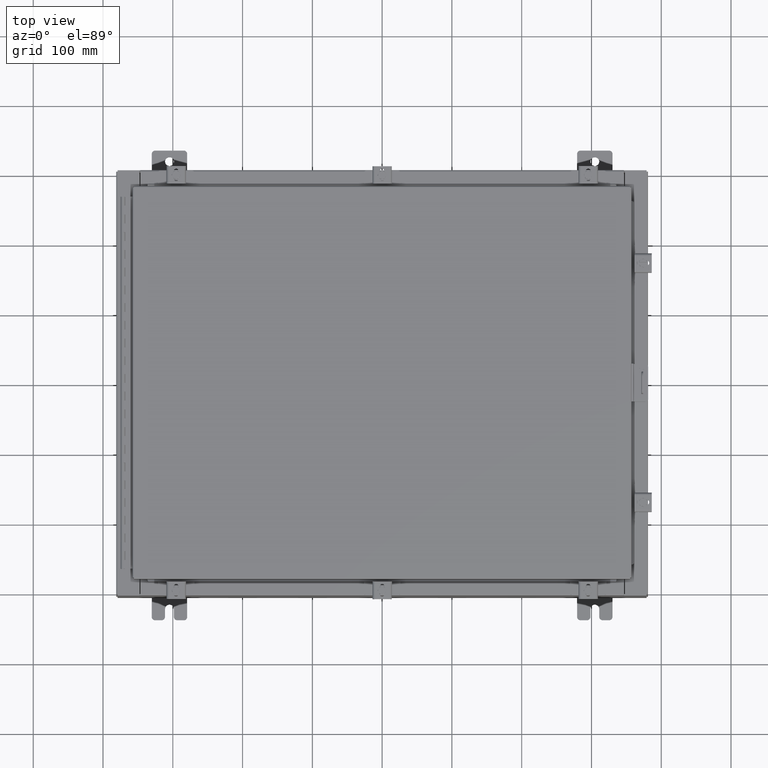
[diagram: clean part render]
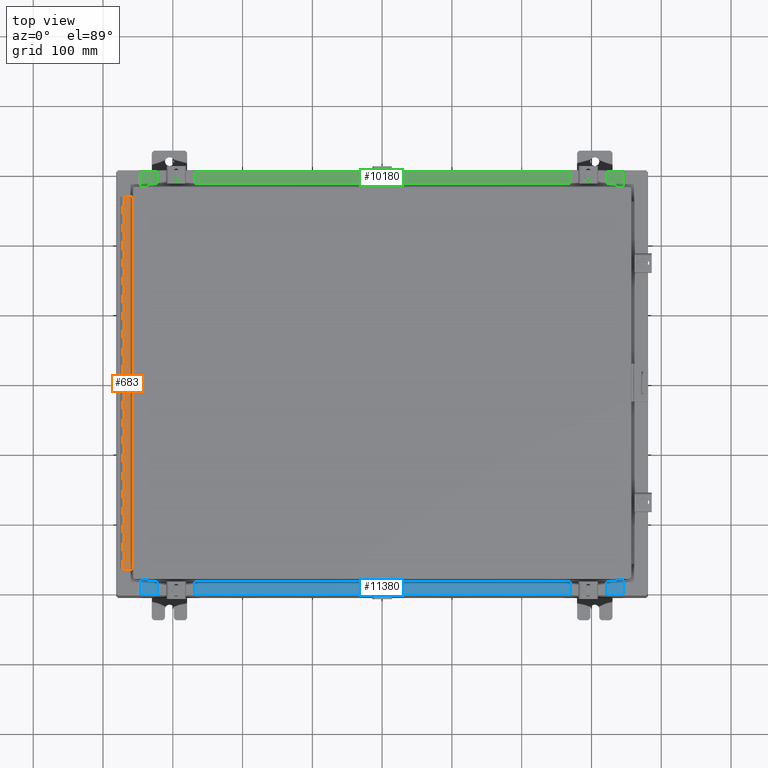
[diagram: same view with three faces highlighted in distinct colors, each labeled with its STEP entity id]
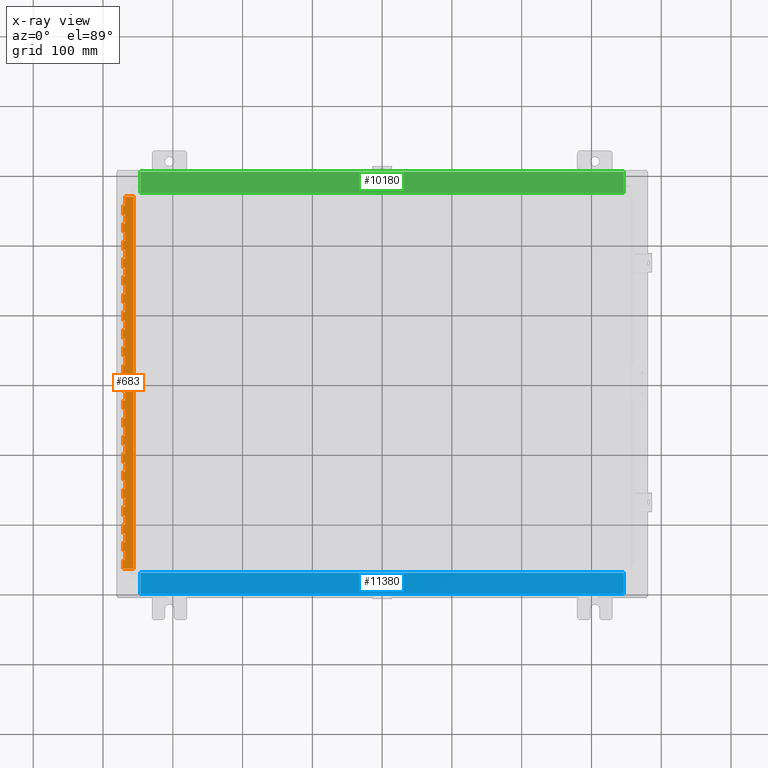
[diagram: x-ray of the same camera — body ghosted, the three highlighted faces saturated]
A machine part, top view with three faces highlighted in distinct colors.
The next image is the same camera in x-ray (body ghosted, the three faces saturated) — at least one of them is partly hidden behind the body in this view.
Their STEP definitions:

[orange] entity #683 — the highlighted planar face has unit normal (-0, -0, 1).
#65 = VECTOR ( 'NONE', #22758, 39.37007874015748100 ) ;
#122 = CARTESIAN_POINT ( 'NONE',  ( -0.6869999999999978300, 0.6754999999999996600, -3.500000000000000000 ) ) ;
#139 = VERTEX_POINT ( 'NONE', #6372 ) ;
#152 = CARTESIAN_POINT ( 'NONE',  ( -0.6869999999999982800, 0.5504999999999997700, -18.50000000000000000 ) ) ;
#167 = CARTESIAN_POINT ( 'NONE',  ( -0.6869999999999973900, 0.8004999999999995500, -6.499999999999999100 ) ) ;
#191 = CARTESIAN_POINT ( 'NONE',  ( -0.6869999999999973900, 0.8004999999999995500, -12.99999999999999800 ) ) ;
#266 = DIRECTION ( 'NONE',  ( -3.389037039080723100E-015, -1.000000000000000000, 0.0000000000000000000 ) ) ;
#292 = EDGE_CURVE ( 'NONE', #29341, #6983, #31892, .T. ) ;
#317 = ORIENTED_EDGE ( 'NONE', *, *, #31158, .F. ) ;
#353 = ORIENTED_EDGE ( 'NONE', *, *, #15928, .F. ) ;
#376 = EDGE_CURVE ( 'NONE', #9217, #16216, #23602, .T. ) ;
#424 = EDGE_CURVE ( 'NONE', #30192, #13076, #8690, .T. ) ;
#431 = VECTOR ( 'NONE', #21276, 39.37007874015748100 ) ;
#446 = CARTESIAN_POINT ( 'NONE',  ( -0.6869999999999973900, 0.8004999999999995500, -17.00000000000000000 ) ) ;
#537 = VERTEX_POINT ( 'NONE', #20522 ) ;
#582 = CARTESIAN_POINT ( 'NONE',  ( -0.6870000000000022800, -0.6245000000000003900, -21.00000000000000000 ) ) ;
#603 = DIRECTION ( 'NONE',  ( 0.0000000000000000000, -0.0000000000000000000, -1.000000000000000000 ) ) ;
#625 = EDGE_CURVE ( 'NONE', #3124, #15619, #5658, .T. ) ;
#628 = LINE ( 'NONE', #12460, #11592 ) ;
#683 = ADVANCED_FACE ( 'NONE', ( #3288 ), #2338, .T. ) ;
#734 = CARTESIAN_POINT ( 'NONE',  ( -0.6869999999999973900, 0.8004999999999995500, -13.50000000000000000 ) ) ;
#739 = VERTEX_POINT ( 'NONE', #7112 ) ;
#748 = VECTOR ( 'NONE', #29358, 39.37007874015748100 ) ;
#820 = DIRECTION ( 'NONE',  ( -3.389037039080723100E-015, -1.000000000000000000, 0.0000000000000000000 ) ) ;
#833 = CARTESIAN_POINT ( 'NONE',  ( -0.6869999999999982800, 0.5504999999999997700, -2.000000000000000000 ) ) ;
#855 = EDGE_CURVE ( 'NONE', #7072, #5792, #31166, .T. ) ;
#999 = LINE ( 'NONE', #26514, #6877 ) ;
#1034 = DIRECTION ( 'NONE',  ( 0.0000000000000000000, 0.0000000000000000000, 1.000000000000000000 ) ) ;
#1101 = CARTESIAN_POINT ( 'NONE',  ( -0.6869999999999982800, 0.5504999999999997700, -8.500000000000000000 ) ) ;
#1167 = CARTESIAN_POINT ( 'NONE',  ( -0.6869999999999982800, 0.5504999999999997700, -10.00000000000000000 ) ) ;
#1208 = CARTESIAN_POINT ( 'NONE',  ( -0.6869999999999973900, 0.8004999999999995500, -5.000000000000000000 ) ) ;
#1303 = EDGE_CURVE ( 'NONE', #4523, #19466, #27634, .T. ) ;
#1326 = LINE ( 'NONE', #20688, #27249 ) ;
#1329 = CARTESIAN_POINT ( 'NONE',  ( -0.6869999999999973900, 0.8004999999999995500, -2.000000000000000000 ) ) ;
#1330 = VERTEX_POINT ( 'NONE', #24858 ) ;
#1392 = CARTESIAN_POINT ( 'NONE',  ( -0.6869999999999978300, 0.6754999999999996600, -17.00000000000000000 ) ) ;
#1502 = CARTESIAN_POINT ( 'NONE',  ( -0.6869999999999982800, 0.5504999999999997700, -7.499999999999999100 ) ) ;
#1599 = CARTESIAN_POINT ( 'NONE',  ( -0.6869999999999982800, 0.5504999999999997700, -18.50000000000000000 ) ) ;
#1619 = ORIENTED_EDGE ( 'NONE', *, *, #26882, .T. ) ;
#1626 = ORIENTED_EDGE ( 'NONE', *, *, #17181, .F. ) ;
#1641 = VERTEX_POINT ( 'NONE', #22839 ) ;
#1664 = LINE ( 'NONE', #26599, #27608 ) ;
#1714 = ORIENTED_EDGE ( 'NONE', *, *, #10280, .F. ) ;
#1734 = VERTEX_POINT ( 'NONE', #10469 ) ;
#1803 = CARTESIAN_POINT ( 'NONE',  ( -0.6869999999999978300, 0.6754999999999996600, -1.499999999999999800 ) ) ;
#1877 = LINE ( 'NONE', #27218, #14440 ) ;
#1878 = VECTOR ( 'NONE', #16556, 39.37007874015748100 ) ;
#1914 = EDGE_CURVE ( 'NONE', #25918, #15418, #16550, .T. ) ;
#2035 = CARTESIAN_POINT ( 'NONE',  ( -0.6869999999999973900, 0.8004999999999995500, -14.99999999999999800 ) ) ;
#2129 = VECTOR ( 'NONE', #28273, 39.37007874015748100 ) ;
#2152 = EDGE_CURVE ( 'NONE', #5748, #29459, #16921, .T. ) ;
#2195 = VERTEX_POINT ( 'NONE', #19806 ) ;
#2206 = EDGE_CURVE ( 'NONE', #15619, #17277, #2847, .T. ) ;
#2229 = VERTEX_POINT ( 'NONE', #3881 ) ;
#2252 = LINE ( 'NONE', #9228, #14043 ) ;
#2295 = CARTESIAN_POINT ( 'NONE',  ( -0.6869999999999978300, 0.6754999999999996600, -6.000000000000000900 ) ) ;
#2335 = ORIENTED_EDGE ( 'NONE', *, *, #32374, .F. ) ;
#2338 = PLANE ( 'NONE',  #23793 ) ;
#2381 = DIRECTION ( 'NONE',  ( 1.000000000000000000, -3.369016658928398200E-015, 0.0000000000000000000 ) ) ;
#2389 = LINE ( 'NONE', #6958, #3174 ) ;
#2409 = DIRECTION ( 'NONE',  ( 3.369016658928398200E-015, 1.000000000000000000, 0.0000000000000000000 ) ) ;
#2653 = VERTEX_POINT ( 'NONE', #22105 ) ;
#2728 = EDGE_CURVE ( 'NONE', #16216, #24731, #22832, .T. ) ;
#2785 = ORIENTED_EDGE ( 'NONE', *, *, #11125, .F. ) ;
#2847 = LINE ( 'NONE', #2035, #22093 ) ;
#2911 = CARTESIAN_POINT ( 'NONE',  ( -0.6869999999999973900, 0.8004999999999995500, -8.500000000000000000 ) ) ;
#2962 = CARTESIAN_POINT ( 'NONE',  ( -0.6869999999999982800, 0.5504999999999997700, -19.00000000000000000 ) ) ;
#3007 = DIRECTION ( 'NONE',  ( 0.0000000000000000000, -0.0000000000000000000, -1.000000000000000000 ) ) ;
#3124 = VERTEX_POINT ( 'NONE', #8937 ) ;
#3163 = ORIENTED_EDGE ( 'NONE', *, *, #6586, .F. ) ;
#3174 = VECTOR ( 'NONE', #22000, 39.37007874015748100 ) ;
#3245 = CARTESIAN_POINT ( 'NONE',  ( -0.6869999999999978300, 0.6754999999999996600, -21.00000000000000000 ) ) ;
#3255 = DIRECTION ( 'NONE',  ( -3.389037039080723100E-015, -1.000000000000000000, 0.0000000000000000000 ) ) ;
#3288 = FACE_OUTER_BOUND ( 'NONE', #5073, .T. ) ;
#3552 = VECTOR ( 'NONE', #32476, 39.37007874015748100 ) ;
#3583 = DIRECTION ( 'NONE',  ( 0.0000000000000000000, 0.0000000000000000000, 1.000000000000000000 ) ) ;
#3595 = VECTOR ( 'NONE', #603, 39.37007874015748100 ) ;
#3627 = LINE ( 'NONE', #6124, #29570 ) ;
#3724 = ORIENTED_EDGE ( 'NONE', *, *, #4863, .F. ) ;
#3767 = EDGE_CURVE ( 'NONE', #22507, #30090, #32208, .T. ) ;
#3775 = EDGE_CURVE ( 'NONE', #30795, #25243, #12950, .T. ) ;
#3784 = LINE ( 'NONE', #4539, #8866 ) ;
#3813 = VECTOR ( 'NONE', #8443, 39.37007874015748100 ) ;
#3839 = VECTOR ( 'NONE', #26361, 39.37007874015748100 ) ;
#3858 = DIRECTION ( 'NONE',  ( 3.389037039080723100E-015, 1.000000000000000000, -0.0000000000000000000 ) ) ;
#3881 = CARTESIAN_POINT ( 'NONE',  ( -0.6869999999999982800, 0.5504999999999997700, -17.50000000000000000 ) ) ;
#3932 = CARTESIAN_POINT ( 'NONE',  ( -0.6869999999999982800, 0.5504999999999997700, -12.49999999999999800 ) ) ;
#3942 = DIRECTION ( 'NONE',  ( 0.0000000000000000000, -0.0000000000000000000, -1.000000000000000000 ) ) ;
#4041 = ORIENTED_EDGE ( 'NONE', *, *, #15552, .F. ) ;
#4101 = EDGE_CURVE ( 'NONE', #24534, #16961, #10958, .T. ) ;
#4102 = LINE ( 'NONE', #1329, #9975 ) ;
#4245 = LINE ( 'NONE', #17979, #15971 ) ;
#4295 = CARTESIAN_POINT ( 'NONE',  ( -0.6869999999999978300, 0.6754999999999996600, -17.50000000000000000 ) ) ;
#4325 = ORIENTED_EDGE ( 'NONE', *, *, #25165, .F. ) ;
#4348 = CARTESIAN_POINT ( 'NONE',  ( -0.6869999999999973900, 0.8004999999999995500, -14.00000000000000000 ) ) ;
#4349 = LINE ( 'NONE', #19738, #10222 ) ;
#4462 = VECTOR ( 'NONE', #8759, 39.37007874015748100 ) ;
#4470 = EDGE_CURVE ( 'NONE', #22019, #15418, #13316, .T. ) ;
#4523 = VERTEX_POINT ( 'NONE', #12181 ) ;
#4525 = LINE ( 'NONE', #9358, #17024 ) ;
#4539 = CARTESIAN_POINT ( 'NONE',  ( -0.6869999999999973900, 0.8004999999999995500, -19.00000000000000000 ) ) ;
#4594 = DIRECTION ( 'NONE',  ( 0.0000000000000000000, 0.0000000000000000000, 1.000000000000000000 ) ) ;
#4595 = LINE ( 'NONE', #31603, #30525 ) ;
#4621 = LINE ( 'NONE', #26251, #3839 ) ;
#4761 = CARTESIAN_POINT ( 'NONE',  ( -0.6869999999999978300, 0.6754999999999996600, -21.00000000000000000 ) ) ;
#4808 = LINE ( 'NONE', #19642, #17311 ) ;
#4863 = EDGE_CURVE ( 'NONE', #15400, #29447, #8959, .T. ) ;
#4923 = VECTOR ( 'NONE', #13907, 39.37007874015748100 ) ;
#5000 = CARTESIAN_POINT ( 'NONE',  ( -0.6869999999999982800, 0.5504999999999997700, -16.00000000000000000 ) ) ;
#5031 = VERTEX_POINT ( 'NONE', #19100 ) ;
#5034 = LINE ( 'NONE', #31393, #30948 ) ;
#5073 = EDGE_LOOP ( 'NONE', ( #24328, #1619, #14065, #6731, #20581, #2785, #5145, #10864, #20951, #317, #6466, #15825, #31653, #32199, #8653, #25817, #32251, #21759, #18553, #23607, #17889, #11761, #6420, #26084, #15412, #24532, #19178, #28316, #28579, #13387, #21346, #18062, #25481, #24981, #29862, #24490, #13104, #15791, #28848, #353, #14511, #3724, #32225, #21729, #27351, #17228, #6133, #18791, #15408, #1714, #15375, #10759, #8207, #2335, #28156, #28057, #9528, #26416, #18971, #7298, #5845, #5262, #16174, #1626, #8781, #25857, #3163, #23765, #9155, #4041, #29582, #6038, #8464, #9414, #27229, #12117, #25063, #30958, #27037, #4325, #18223, #15402, #17701, #5556, #32338, #18305 ) ) ;
#5141 = EDGE_CURVE ( 'NONE', #24578, #17277, #15980, .T. ) ;
#5145 = ORIENTED_EDGE ( 'NONE', *, *, #28186, .F. ) ;
#5236 = VERTEX_POINT ( 'NONE', #2295 ) ;
#5239 = VECTOR ( 'NONE', #15310, 39.37007874015748100 ) ;
#5243 = LINE ( 'NONE', #28883, #4462 ) ;
#5262 = ORIENTED_EDGE ( 'NONE', *, *, #24765, .F. ) ;
#5395 = CARTESIAN_POINT ( 'NONE',  ( -0.6869999999999978300, 0.6754999999999996600, -7.000000000000000000 ) ) ;
#5449 = CARTESIAN_POINT ( 'NONE',  ( -0.6869999999999978300, 0.6754999999999996600, -18.50000000000000000 ) ) ;
#5450 = VECTOR ( 'NONE', #16716, 39.37007874015748100 ) ;
#5454 = VERTEX_POINT ( 'NONE', #28538 ) ;
#5455 = CARTESIAN_POINT ( 'NONE',  ( -0.6869999999999982800, 0.5504999999999997700, -5.500000000000000000 ) ) ;
#5556 = ORIENTED_EDGE ( 'NONE', *, *, #8232, .F. ) ;
#5658 = LINE ( 'NONE', #10999, #30792 ) ;
#5664 = VECTOR ( 'NONE', #27011, 39.37007874015748100 ) ;
#5727 = LINE ( 'NONE', #3245, #31654 ) ;
#5748 = VERTEX_POINT ( 'NONE', #22490 ) ;
#5792 = VERTEX_POINT ( 'NONE', #18144 ) ;
#5845 = ORIENTED_EDGE ( 'NONE', *, *, #18565, .T. ) ;
#5863 = CARTESIAN_POINT ( 'NONE',  ( -0.6869999999999973900, 0.8004999999999995500, -6.000000000000000900 ) ) ;
#5878 = DIRECTION ( 'NONE',  ( -3.389037039080723100E-015, -1.000000000000000000, 0.0000000000000000000 ) ) ;
#5914 = LINE ( 'NONE', #11252, #7488 ) ;
#5923 = CARTESIAN_POINT ( 'NONE',  ( -0.6869999999999978300, 0.6754999999999996600, -8.000000000000000000 ) ) ;
#5980 = VECTOR ( 'NONE', #1034, 39.37007874015748100 ) ;
#6004 = VECTOR ( 'NONE', #12440, 39.37007874015748100 ) ;
#6038 = ORIENTED_EDGE ( 'NONE', *, *, #23477, .F. ) ;
#6124 = CARTESIAN_POINT ( 'NONE',  ( -0.6869999999999978300, 0.6754999999999996600, -21.00000000000000000 ) ) ;
#6133 = ORIENTED_EDGE ( 'NONE', *, *, #25951, .F. ) ;
#6168 = EDGE_CURVE ( 'NONE', #7909, #15400, #26163, .T. ) ;
#6192 = CARTESIAN_POINT ( 'NONE',  ( -0.6870000000000022800, -0.6245000000000003900, 0.0000000000000000000 ) ) ;
#6215 = VERTEX_POINT ( 'NONE', #24286 ) ;
#6302 = EDGE_CURVE ( 'NONE', #739, #22326, #28933, .T. ) ;
#6372 = CARTESIAN_POINT ( 'NONE',  ( -0.6869999999999978300, 0.6754999999999996600, -16.50000000000000000 ) ) ;
#6404 = DIRECTION ( 'NONE',  ( 0.0000000000000000000, 0.0000000000000000000, 1.000000000000000000 ) ) ;
#6407 = DIRECTION ( 'NONE',  ( -3.389037039080723100E-015, -1.000000000000000000, 0.0000000000000000000 ) ) ;
#6420 = ORIENTED_EDGE ( 'NONE', *, *, #10039, .F. ) ;
#6466 = ORIENTED_EDGE ( 'NONE', *, *, #22537, .F. ) ;
#6498 = DIRECTION ( 'NONE',  ( 0.0000000000000000000, 0.0000000000000000000, 1.000000000000000000 ) ) ;
#6563 = VERTEX_POINT ( 'NONE', #13572 ) ;
#6586 = EDGE_CURVE ( 'NONE', #28908, #29935, #26937, .T. ) ;
#6669 = LINE ( 'NONE', #10553, #2129 ) ;
#6731 = ORIENTED_EDGE ( 'NONE', *, *, #10846, .F. ) ;
#6739 = LINE ( 'NONE', #167, #65 ) ;
#6779 = CARTESIAN_POINT ( 'NONE',  ( -0.6869999999999982800, 0.5504999999999997700, -21.00000000000000000 ) ) ;
#6818 = DIRECTION ( 'NONE',  ( 3.389037039080723100E-015, 1.000000000000000000, -0.0000000000000000000 ) ) ;
#6870 = DIRECTION ( 'NONE',  ( 3.389037039080723100E-015, 1.000000000000000000, -0.0000000000000000000 ) ) ;
#6877 = VECTOR ( 'NONE', #29055, 39.37007874015748100 ) ;
#6958 = CARTESIAN_POINT ( 'NONE',  ( -0.6869999999999973900, 0.8004999999999995500, -17.50000000000000000 ) ) ;
#6983 = VERTEX_POINT ( 'NONE', #1392 ) ;
#7036 = EDGE_CURVE ( 'NONE', #30334, #29341, #10006, .T. ) ;
#7072 = VERTEX_POINT ( 'NONE', #12558 ) ;
#7098 = LINE ( 'NONE', #1101, #431 ) ;
#7112 = CARTESIAN_POINT ( 'NONE',  ( -0.6869999999999982800, 0.5504999999999997700, -1.499999999999999800 ) ) ;
#7127 = DIRECTION ( 'NONE',  ( 0.0000000000000000000, 0.0000000000000000000, 1.000000000000000000 ) ) ;
#7171 = DIRECTION ( 'NONE',  ( 0.0000000000000000000, 0.0000000000000000000, 1.000000000000000000 ) ) ;
#7222 = CARTESIAN_POINT ( 'NONE',  ( -0.6869999999999982800, 0.5504999999999997700, -11.50000000000000000 ) ) ;
#7269 = LINE ( 'NONE', #23947, #20612 ) ;
#7288 = CARTESIAN_POINT ( 'NONE',  ( -0.6869999999999978300, 0.6754999999999996600, -16.00000000000000000 ) ) ;
#7298 = ORIENTED_EDGE ( 'NONE', *, *, #24563, .F. ) ;
#7343 = CARTESIAN_POINT ( 'NONE',  ( -0.6869999999999982800, 0.5504999999999997700, -17.50000000000000000 ) ) ;
#7488 = VECTOR ( 'NONE', #3583, 39.37007874015748100 ) ;
#7577 = LINE ( 'NONE', #22426, #6004 ) ;
#7734 = CARTESIAN_POINT ( 'NONE',  ( -0.6869999999999978300, 0.6754999999999996600, -15.50000000000000000 ) ) ;
#7790 = CARTESIAN_POINT ( 'NONE',  ( -0.6869999999999978300, 0.6754999999999996600, -14.00000000000000000 ) ) ;
#7824 = LINE ( 'NONE', #12228, #21165 ) ;
#7900 = LINE ( 'NONE', #1208, #27150 ) ;
#7906 = LINE ( 'NONE', #5863, #24387 ) ;
#7909 = VERTEX_POINT ( 'NONE', #17813 ) ;
#7913 = VECTOR ( 'NONE', #18551, 39.37007874015748100 ) ;
#8139 = EDGE_CURVE ( 'NONE', #139, #16961, #5034, .T. ) ;
#8207 = ORIENTED_EDGE ( 'NONE', *, *, #424, .T. ) ;
#8231 = CARTESIAN_POINT ( 'NONE',  ( -0.6869999999999973900, 0.8004999999999995500, -11.50000000000000000 ) ) ;
#8232 = EDGE_CURVE ( 'NONE', #1330, #16284, #1877, .T. ) ;
#8268 = VERTEX_POINT ( 'NONE', #25272 ) ;
#8270 = CARTESIAN_POINT ( 'NONE',  ( -0.6869999999999978300, 0.6754999999999996600, -17.99999999999999600 ) ) ;
#8289 = CARTESIAN_POINT ( 'NONE',  ( -0.6869999999999973900, 0.8004999999999995500, -15.50000000000000000 ) ) ;
#8293 = LINE ( 'NONE', #11638, #20840 ) ;
#8443 = DIRECTION ( 'NONE',  ( 0.0000000000000000000, 0.0000000000000000000, 1.000000000000000000 ) ) ;
#8464 = ORIENTED_EDGE ( 'NONE', *, *, #15964, .T. ) ;
#8653 = ORIENTED_EDGE ( 'NONE', *, *, #19830, .F. ) ;
#8690 = LINE ( 'NONE', #19706, #7913 ) ;
#8759 = DIRECTION ( 'NONE',  ( -3.389037039080723100E-015, -1.000000000000000000, 0.0000000000000000000 ) ) ;
#8770 = LINE ( 'NONE', #30902, #14649 ) ;
#8781 = ORIENTED_EDGE ( 'NONE', *, *, #12454, .T. ) ;
#8792 = EDGE_CURVE ( 'NONE', #27596, #6983, #4595, .T. ) ;
#8866 = VECTOR ( 'NONE', #17094, 39.37007874015748100 ) ;
#8872 = VERTEX_POINT ( 'NONE', #23119 ) ;
#8873 = CARTESIAN_POINT ( 'NONE',  ( -0.6869999999999982800, 0.5504999999999997700, -15.50000000000000000 ) ) ;
#8937 = CARTESIAN_POINT ( 'NONE',  ( -0.6869999999999982800, 0.5504999999999997700, -14.49999999999999800 ) ) ;
#8959 = LINE ( 'NONE', #18630, #21535 ) ;
#8999 = VECTOR ( 'NONE', #23101, 39.37007874015748100 ) ;
#9155 = ORIENTED_EDGE ( 'NONE', *, *, #11512, .T. ) ;
#9217 = VERTEX_POINT ( 'NONE', #3932 ) ;
#9228 = CARTESIAN_POINT ( 'NONE',  ( -0.6869999999999978300, 0.6754999999999996600, -21.00000000000000000 ) ) ;
#9352 = EDGE_CURVE ( 'NONE', #18703, #11835, #29728, .T. ) ;
#9358 = CARTESIAN_POINT ( 'NONE',  ( -0.6869999999999973900, 0.8004999999999995500, -14.49999999999999800 ) ) ;
#9414 = ORIENTED_EDGE ( 'NONE', *, *, #32229, .F. ) ;
#9515 = EDGE_CURVE ( 'NONE', #15186, #11835, #628, .T. ) ;
#9528 = ORIENTED_EDGE ( 'NONE', *, *, #17973, .T. ) ;
#9587 = VECTOR ( 'NONE', #12750, 39.37007874015748100 ) ;
#9628 = CARTESIAN_POINT ( 'NONE',  ( -0.6869999999999978300, 0.6754999999999996600, -5.500000000000000000 ) ) ;
#9666 = EDGE_CURVE ( 'NONE', #30192, #31620, #14348, .T. ) ;
#9726 = CARTESIAN_POINT ( 'NONE',  ( -0.6869999999999982800, 0.5504999999999997700, -0.5000000000000000000 ) ) ;
#9746 = EDGE_CURVE ( 'NONE', #24578, #16069, #18626, .T. ) ;
#9779 = LINE ( 'NONE', #30705, #8999 ) ;
#9873 = EDGE_CURVE ( 'NONE', #25243, #2653, #28902, .T. ) ;
#9877 = DIRECTION ( 'NONE',  ( 0.0000000000000000000, -0.0000000000000000000, -1.000000000000000000 ) ) ;
#9901 = EDGE_CURVE ( 'NONE', #19716, #9217, #7269, .T. ) ;
#9941 = EDGE_CURVE ( 'NONE', #139, #30334, #25721, .T. ) ;
#9949 = LINE ( 'NONE', #31066, #17361 ) ;
#9975 = VECTOR ( 'NONE', #3858, 39.37007874015748100 ) ;
#10006 = LINE ( 'NONE', #21034, #30074 ) ;
#10039 = EDGE_CURVE ( 'NONE', #16069, #24534, #24144, .T. ) ;
#10222 = VECTOR ( 'NONE', #17192, 39.37007874015748100 ) ;
#10280 = EDGE_CURVE ( 'NONE', #17169, #15757, #16221, .T. ) ;
#10293 = VECTOR ( 'NONE', #6818, 39.37007874015748100 ) ;
#10431 = VECTOR ( 'NONE', #6870, 39.37007874015748100 ) ;
#10451 = VERTEX_POINT ( 'NONE', #25803 ) ;
#10469 = CARTESIAN_POINT ( 'NONE',  ( -0.6869999999999978300, 0.6754999999999996600, -6.499999999999999100 ) ) ;
#10537 = CARTESIAN_POINT ( 'NONE',  ( -0.6869999999999982800, 0.5504999999999997700, -9.000000000000000000 ) ) ;
#10551 = EDGE_CURVE ( 'NONE', #22326, #22857, #4102, .T. ) ;
#10553 = CARTESIAN_POINT ( 'NONE',  ( -0.6869999999999973900, 0.8004999999999995500, -4.500000000000000000 ) ) ;
#10641 = DIRECTION ( 'NONE',  ( -3.389037039080723100E-015, -1.000000000000000000, 0.0000000000000000000 ) ) ;
#10644 = VECTOR ( 'NONE', #9877, 39.37007874015748100 ) ;
#10759 = ORIENTED_EDGE ( 'NONE', *, *, #9666, .F. ) ;
#10800 = DIRECTION ( 'NONE',  ( 0.0000000000000000000, 0.0000000000000000000, 1.000000000000000000 ) ) ;
#10842 = EDGE_CURVE ( 'NONE', #18853, #7909, #8770, .T. ) ;
#10844 = VERTEX_POINT ( 'NONE', #15829 ) ;
#10846 = EDGE_CURVE ( 'NONE', #26483, #20665, #1326, .T. ) ;
#10864 = ORIENTED_EDGE ( 'NONE', *, *, #855, .F. ) ;
#10958 = LINE ( 'NONE', #28687, #16032 ) ;
#10968 = DIRECTION ( 'NONE',  ( 0.0000000000000000000, 0.0000000000000000000, 1.000000000000000000 ) ) ;
#10969 = CARTESIAN_POINT ( 'NONE',  ( -0.6869999999999978300, 0.6754999999999996600, -14.99999999999999800 ) ) ;
#10985 = CARTESIAN_POINT ( 'NONE',  ( -0.6869999999999978300, 0.6754999999999996600, -21.00000000000000000 ) ) ;
#10999 = CARTESIAN_POINT ( 'NONE',  ( -0.6869999999999982800, 0.5504999999999997700, -14.49999999999999800 ) ) ;
#11057 = CARTESIAN_POINT ( 'NONE',  ( -0.6869999999999978300, 0.6754999999999996600, -11.99999999999999800 ) ) ;
#11115 = LINE ( 'NONE', #14526, #23675 ) ;
#11125 = EDGE_CURVE ( 'NONE', #5031, #10451, #7577, .T. ) ;
#11252 = CARTESIAN_POINT ( 'NONE',  ( -0.6869999999999978300, 0.6754999999999996600, -21.00000000000000000 ) ) ;
#11349 = CARTESIAN_POINT ( 'NONE',  ( -0.6869999999999978300, 0.6754999999999996600, -21.00000000000000000 ) ) ;
#11365 = LINE ( 'NONE', #734, #24711 ) ;
#11512 = EDGE_CURVE ( 'NONE', #19441, #31669, #1664, .T. ) ;
#11561 = VECTOR ( 'NONE', #26818, 39.37007874015748100 ) ;
#11579 = LINE ( 'NONE', #28955, #4923 ) ;
#11591 = DIRECTION ( 'NONE',  ( 0.0000000000000000000, 0.0000000000000000000, 1.000000000000000000 ) ) ;
#11592 = VECTOR ( 'NONE', #27531, 39.37007874015748100 ) ;
#11638 = CARTESIAN_POINT ( 'NONE',  ( -0.6869999999999973900, 0.8004999999999995500, -7.499999999999999100 ) ) ;
#11724 = VECTOR ( 'NONE', #24305, 39.37007874015748100 ) ;
#11730 = VECTOR ( 'NONE', #13910, 39.37007874015748100 ) ;
#11752 = CARTESIAN_POINT ( 'NONE',  ( -0.6869999999999982800, 0.5504999999999997700, -15.50000000000000000 ) ) ;
#11761 = ORIENTED_EDGE ( 'NONE', *, *, #4101, .F. ) ;
#11828 = VECTOR ( 'NONE', #18945, 39.37007874015748100 ) ;
#11835 = VERTEX_POINT ( 'NONE', #7790 ) ;
#11877 = DIRECTION ( 'NONE',  ( -3.389037039080723100E-015, -1.000000000000000000, 0.0000000000000000000 ) ) ;
#11953 = CARTESIAN_POINT ( 'NONE',  ( -0.6869999999999982800, 0.5504999999999997700, -0.5000000000000000000 ) ) ;
#12031 = CARTESIAN_POINT ( 'NONE',  ( -0.6869999999999982800, 0.5504999999999997700, -12.99999999999999800 ) ) ;
#12086 = CARTESIAN_POINT ( 'NONE',  ( -0.6869999999999978300, 0.6754999999999996600, -1.000000000000000000 ) ) ;
#12117 = ORIENTED_EDGE ( 'NONE', *, *, #14961, .F. ) ;
#12163 = VECTOR ( 'NONE', #17969, 39.37007874015748100 ) ;
#12181 = CARTESIAN_POINT ( 'NONE',  ( -0.6869999999999982800, 0.5504999999999997700, -11.99999999999999800 ) ) ;
#12202 = LINE ( 'NONE', #10985, #5980 ) ;
#12209 = CARTESIAN_POINT ( 'NONE',  ( -0.6869999999999978300, 0.6754999999999996600, -21.00000000000000000 ) ) ;
#12228 = CARTESIAN_POINT ( 'NONE',  ( -0.6869999999999978300, 0.6754999999999996600, -21.00000000000000000 ) ) ;
#12325 = VERTEX_POINT ( 'NONE', #15370 ) ;
#12440 = DIRECTION ( 'NONE',  ( 3.389037039080723100E-015, 1.000000000000000000, -0.0000000000000000000 ) ) ;
#12454 = EDGE_CURVE ( 'NONE', #19754, #537, #12202, .T. ) ;
#12460 = CARTESIAN_POINT ( 'NONE',  ( -0.6869999999999978300, 0.6754999999999996600, -21.00000000000000000 ) ) ;
#12546 = CARTESIAN_POINT ( 'NONE',  ( -0.6869999999999973900, 0.8004999999999995500, -1.000000000000000000 ) ) ;
#12558 = CARTESIAN_POINT ( 'NONE',  ( -0.6869999999999978300, 0.6754999999999996600, -19.50000000000000000 ) ) ;
#12646 = DIRECTION ( 'NONE',  ( 3.389037039080723100E-015, 1.000000000000000000, -0.0000000000000000000 ) ) ;
#12750 = DIRECTION ( 'NONE',  ( 3.389037039080723100E-015, 1.000000000000000000, -0.0000000000000000000 ) ) ;
#12768 = LINE ( 'NONE', #14203, #13567 ) ;
#12837 = EDGE_CURVE ( 'NONE', #8872, #27738, #17289, .T. ) ;
#12891 = DIRECTION ( 'NONE',  ( -3.389037039080723100E-015, -1.000000000000000000, 0.0000000000000000000 ) ) ;
#12950 = LINE ( 'NONE', #26018, #31418 ) ;
#12967 = DIRECTION ( 'NONE',  ( 0.0000000000000000000, -0.0000000000000000000, -1.000000000000000000 ) ) ;
#13038 = CARTESIAN_POINT ( 'NONE',  ( -0.6869999999999982800, 0.5504999999999997700, -4.500000000000000000 ) ) ;
#13048 = VERTEX_POINT ( 'NONE', #23241 ) ;
#13076 = VERTEX_POINT ( 'NONE', #5923 ) ;
#13104 = ORIENTED_EDGE ( 'NONE', *, *, #14680, .T. ) ;
#13169 = EDGE_CURVE ( 'NONE', #29935, #537, #7900, .T. ) ;
#13179 = EDGE_CURVE ( 'NONE', #31620, #17169, #7098, .T. ) ;
#13310 = VECTOR ( 'NONE', #6404, 39.37007874015748100 ) ;
#13316 = LINE ( 'NONE', #27134, #748 ) ;
#13333 = LINE ( 'NONE', #21810, #11724 ) ;
#13387 = ORIENTED_EDGE ( 'NONE', *, *, #9352, .F. ) ;
#13394 = CARTESIAN_POINT ( 'NONE',  ( -0.6869999999999982800, 0.5504999999999997700, -3.500000000000000000 ) ) ;
#13468 = VECTOR ( 'NONE', #20352, 39.37007874015748100 ) ;
#13517 = DIRECTION ( 'NONE',  ( -3.389037039080723100E-015, -1.000000000000000000, 0.0000000000000000000 ) ) ;
#13566 = VERTEX_POINT ( 'NONE', #13394 ) ;
#13567 = VECTOR ( 'NONE', #31777, 39.37007874015748100 ) ;
#13572 = CARTESIAN_POINT ( 'NONE',  ( -0.6869999999999978300, 0.6754999999999996600, -2.999999999999999600 ) ) ;
#13693 = VECTOR ( 'NONE', #16575, 39.37007874015748100 ) ;
#13889 = VECTOR ( 'NONE', #4594, 39.37007874015748100 ) ;
#13907 = DIRECTION ( 'NONE',  ( 0.0000000000000000000, -0.0000000000000000000, -1.000000000000000000 ) ) ;
#13910 = DIRECTION ( 'NONE',  ( 3.369016658928398200E-015, 1.000000000000000000, 0.0000000000000000000 ) ) ;
#14043 = VECTOR ( 'NONE', #14289, 39.37007874015748100 ) ;
#14065 = ORIENTED_EDGE ( 'NONE', *, *, #25229, .F. ) ;
#14185 = DIRECTION ( 'NONE',  ( -3.389037039080723100E-015, -1.000000000000000000, 0.0000000000000000000 ) ) ;
#14203 = CARTESIAN_POINT ( 'NONE',  ( -0.6869999999999973900, 0.8004999999999995500, -10.00000000000000000 ) ) ;
#14253 = CARTESIAN_POINT ( 'NONE',  ( -0.6869999999999978300, 0.6754999999999996600, -21.00000000000000000 ) ) ;
#14289 = DIRECTION ( 'NONE',  ( 0.0000000000000000000, 0.0000000000000000000, 1.000000000000000000 ) ) ;
#14348 = LINE ( 'NONE', #2911, #20231 ) ;
#14416 = EDGE_CURVE ( 'NONE', #29394, #29459, #7824, .T. ) ;
#14428 = CARTESIAN_POINT ( 'NONE',  ( -0.6869999999999982800, 0.5504999999999997700, -13.50000000000000000 ) ) ;
#14440 = VECTOR ( 'NONE', #28162, 39.37007874015748100 ) ;
#14511 = ORIENTED_EDGE ( 'NONE', *, *, #16537, .T. ) ;
#14526 = CARTESIAN_POINT ( 'NONE',  ( -0.6869999999999973900, 0.8004999999999995500, -7.000000000000000000 ) ) ;
#14649 = VECTOR ( 'NONE', #820, 39.37007874015748100 ) ;
#14680 = EDGE_CURVE ( 'NONE', #19716, #19466, #14853, .T. ) ;
#14779 = CARTESIAN_POINT ( 'NONE',  ( -0.6869999999999978300, 0.6754999999999996600, -20.50000000000000400 ) ) ;
#14853 = LINE ( 'NONE', #20775, #19961 ) ;
#14961 = EDGE_CURVE ( 'NONE', #26812, #2195, #18736, .T. ) ;
#15019 = DIRECTION ( 'NONE',  ( 0.0000000000000000000, -0.0000000000000000000, -1.000000000000000000 ) ) ;
#15068 = VERTEX_POINT ( 'NONE', #14428 ) ;
#15186 = VERTEX_POINT ( 'NONE', #22427 ) ;
#15255 = CARTESIAN_POINT ( 'NONE',  ( -0.6869999999999978300, 0.6754999999999996600, -2.000000000000000000 ) ) ;
#15287 = EDGE_CURVE ( 'NONE', #25918, #22823, #30944, .T. ) ;
#15310 = DIRECTION ( 'NONE',  ( -3.389037039080723100E-015, -1.000000000000000000, 0.0000000000000000000 ) ) ;
#15330 = EDGE_CURVE ( 'NONE', #15068, #18703, #4245, .T. ) ;
#15370 = CARTESIAN_POINT ( 'NONE',  ( -0.6869999999999982800, 0.5504999999999997700, -2.999999999999999600 ) ) ;
#15375 = ORIENTED_EDGE ( 'NONE', *, *, #13179, .F. ) ;
#15400 = VERTEX_POINT ( 'NONE', #30770 ) ;
#15402 = ORIENTED_EDGE ( 'NONE', *, *, #2152, .F. ) ;
#15408 = ORIENTED_EDGE ( 'NONE', *, *, #29312, .T. ) ;
#15412 = ORIENTED_EDGE ( 'NONE', *, *, #5141, .T. ) ;
#15414 = CARTESIAN_POINT ( 'NONE',  ( -0.6869999999999982800, 0.5504999999999997700, -16.50000000000000000 ) ) ;
#15418 = VERTEX_POINT ( 'NONE', #8270 ) ;
#15525 = VECTOR ( 'NONE', #21569, 39.37007874015748100 ) ;
#15552 = EDGE_CURVE ( 'NONE', #5454, #31669, #4621, .T. ) ;
#15619 = VERTEX_POINT ( 'NONE', #31643 ) ;
#15639 = EDGE_CURVE ( 'NONE', #18853, #22150, #2252, .T. ) ;
#15730 = EDGE_CURVE ( 'NONE', #7072, #1641, #24220, .T. ) ;
#15757 = VERTEX_POINT ( 'NONE', #22290 ) ;
#15773 = CARTESIAN_POINT ( 'NONE',  ( -0.6869999999999982800, 0.5504999999999997700, -6.000000000000000900 ) ) ;
#15791 = ORIENTED_EDGE ( 'NONE', *, *, #1303, .F. ) ;
#15825 = ORIENTED_EDGE ( 'NONE', *, *, #15287, .F. ) ;
#15829 = CARTESIAN_POINT ( 'NONE',  ( -0.6869999999999982800, 0.5504999999999997700, -9.500000000000000000 ) ) ;
#15869 = VERTEX_POINT ( 'NONE', #2962 ) ;
#15880 = LINE ( 'NONE', #1599, #16641 ) ;
#15903 = VECTOR ( 'NONE', #12967, 39.37007874015748100 ) ;
#15928 = EDGE_CURVE ( 'NONE', #6215, #22020, #25390, .T. ) ;
#15964 = EDGE_CURVE ( 'NONE', #19206, #6563, #29753, .T. ) ;
#15971 = VECTOR ( 'NONE', #3007, 39.37007874015748100 ) ;
#15980 = LINE ( 'NONE', #12209, #1878 ) ;
#15992 = DIRECTION ( 'NONE',  ( 3.389037039080723100E-015, 1.000000000000000000, -0.0000000000000000000 ) ) ;
#15997 = CARTESIAN_POINT ( 'NONE',  ( -0.6869999999999973900, 0.8004999999999995500, -19.50000000000000000 ) ) ;
#16022 = DIRECTION ( 'NONE',  ( 3.389037039080723100E-015, 1.000000000000000000, -0.0000000000000000000 ) ) ;
#16032 = VECTOR ( 'NONE', #28372, 39.37007874015748100 ) ;
#16069 = VERTEX_POINT ( 'NONE', #8873 ) ;
#16174 = ORIENTED_EDGE ( 'NONE', *, *, #26106, .F. ) ;
#16183 = DIRECTION ( 'NONE',  ( 3.389037039080723100E-015, 1.000000000000000000, -0.0000000000000000000 ) ) ;
#16216 = VERTEX_POINT ( 'NONE', #12031 ) ;
#16221 = LINE ( 'NONE', #22727, #9587 ) ;
#16266 = DIRECTION ( 'NONE',  ( 3.389037039080723100E-015, 1.000000000000000000, -0.0000000000000000000 ) ) ;
#16284 = VERTEX_POINT ( 'NONE', #9726 ) ;
#16364 = CARTESIAN_POINT ( 'NONE',  ( -0.6869999999999973900, 0.8004999999999995500, -8.000000000000000000 ) ) ;
#16383 = CARTESIAN_POINT ( 'NONE',  ( -0.6869999999999982800, 0.5504999999999997700, -19.50000000000000000 ) ) ;
#16537 = EDGE_CURVE ( 'NONE', #6215, #29447, #5727, .T. ) ;
#16550 = LINE ( 'NONE', #11349, #22492 ) ;
#16556 = DIRECTION ( 'NONE',  ( 0.0000000000000000000, 0.0000000000000000000, 1.000000000000000000 ) ) ;
#16575 = DIRECTION ( 'NONE',  ( -3.389037039080723100E-015, -1.000000000000000000, 0.0000000000000000000 ) ) ;
#16596 = VECTOR ( 'NONE', #16266, 39.37007874015748100 ) ;
#16641 = VECTOR ( 'NONE', #26520, 39.37007874015748100 ) ;
#16716 = DIRECTION ( 'NONE',  ( 0.0000000000000000000, 0.0000000000000000000, 1.000000000000000000 ) ) ;
#16755 = EDGE_CURVE ( 'NONE', #22020, #4523, #999, .T. ) ;
#16771 = EDGE_CURVE ( 'NONE', #18311, #22150, #12768, .T. ) ;
#16848 = EDGE_CURVE ( 'NONE', #15186, #3124, #4525, .T. ) ;
#16921 = LINE ( 'NONE', #12546, #10293 ) ;
#16961 = VERTEX_POINT ( 'NONE', #7288 ) ;
#17011 = DIRECTION ( 'NONE',  ( 3.389037039080723100E-015, 1.000000000000000000, -0.0000000000000000000 ) ) ;
#17024 = VECTOR ( 'NONE', #11877, 39.37007874015748100 ) ;
#17094 = DIRECTION ( 'NONE',  ( 3.389037039080723100E-015, 1.000000000000000000, -0.0000000000000000000 ) ) ;
#17142 = CARTESIAN_POINT ( 'NONE',  ( -0.6869999999999978300, 0.6754999999999996600, -21.00000000000000000 ) ) ;
#17169 = VERTEX_POINT ( 'NONE', #10537 ) ;
#17181 = EDGE_CURVE ( 'NONE', #19754, #30327, #29277, .T. ) ;
#17192 = DIRECTION ( 'NONE',  ( -3.389037039080723100E-015, -1.000000000000000000, 0.0000000000000000000 ) ) ;
#17208 = CARTESIAN_POINT ( 'NONE',  ( -0.6869999999999982800, 0.5504999999999997700, -7.499999999999999100 ) ) ;
#17228 = ORIENTED_EDGE ( 'NONE', *, *, #16771, .F. ) ;
#17277 = VERTEX_POINT ( 'NONE', #10969 ) ;
#17289 = LINE ( 'NONE', #17412, #10644 ) ;
#17311 = VECTOR ( 'NONE', #7171, 39.37007874015748100 ) ;
#17361 = VECTOR ( 'NONE', #13517, 39.37007874015748100 ) ;
#17412 = CARTESIAN_POINT ( 'NONE',  ( -0.6869999999999982800, 0.5504999999999997700, -6.499999999999999100 ) ) ;
#17531 = VECTOR ( 'NONE', #266, 39.37007874015748100 ) ;
#17575 = EDGE_CURVE ( 'NONE', #16284, #5748, #31589, .T. ) ;
#17630 = CARTESIAN_POINT ( 'NONE',  ( -0.6869999999999998300, 0.07549999999999991400, 0.0000000000000000000 ) ) ;
#17650 = LINE ( 'NONE', #22504, #27915 ) ;
#17701 = ORIENTED_EDGE ( 'NONE', *, *, #17575, .F. ) ;
#17813 = CARTESIAN_POINT ( 'NONE',  ( -0.6869999999999982800, 0.5504999999999997700, -10.50000000000000000 ) ) ;
#17840 = EDGE_CURVE ( 'NONE', #8268, #10844, #5243, .T. ) ;
#17888 = VECTOR ( 'NONE', #30840, 39.37007874015748100 ) ;
#17889 = ORIENTED_EDGE ( 'NONE', *, *, #8139, .T. ) ;
#17969 = DIRECTION ( 'NONE',  ( 0.0000000000000000000, -0.0000000000000000000, -1.000000000000000000 ) ) ;
#17973 = EDGE_CURVE ( 'NONE', #13048, #31348, #28035, .T. ) ;
#17979 = CARTESIAN_POINT ( 'NONE',  ( -0.6869999999999982800, 0.5504999999999997700, -13.50000000000000000 ) ) ;
#18062 = ORIENTED_EDGE ( 'NONE', *, *, #20068, .F. ) ;
#18144 = CARTESIAN_POINT ( 'NONE',  ( -0.6869999999999982800, 0.5504999999999997700, -19.50000000000000000 ) ) ;
#18223 = ORIENTED_EDGE ( 'NONE', *, *, #14416, .T. ) ;
#18305 = ORIENTED_EDGE ( 'NONE', *, *, #9873, .F. ) ;
#18311 = VERTEX_POINT ( 'NONE', #1167 ) ;
#18356 = DIRECTION ( 'NONE',  ( 3.389037039080723100E-015, 1.000000000000000000, -0.0000000000000000000 ) ) ;
#18481 = VECTOR ( 'NONE', #16022, 39.37007874015748100 ) ;
#18551 = DIRECTION ( 'NONE',  ( 0.0000000000000000000, 0.0000000000000000000, 1.000000000000000000 ) ) ;
#18553 = ORIENTED_EDGE ( 'NONE', *, *, #7036, .F. ) ;
#18565 = EDGE_CURVE ( 'NONE', #1734, #5236, #4808, .T. ) ;
#18626 = LINE ( 'NONE', #8289, #31244 ) ;
#18630 = CARTESIAN_POINT ( 'NONE',  ( -0.6869999999999973900, 0.8004999999999995500, -11.00000000000000000 ) ) ;
#18703 = VERTEX_POINT ( 'NONE', #25265 ) ;
#18736 = LINE ( 'NONE', #31686, #13693 ) ;
#18791 = ORIENTED_EDGE ( 'NONE', *, *, #17840, .F. ) ;
#18831 = CARTESIAN_POINT ( 'NONE',  ( -0.6869999999999982800, 0.5504999999999997700, -12.49999999999999800 ) ) ;
#18853 = VERTEX_POINT ( 'NONE', #25915 ) ;
#18945 = DIRECTION ( 'NONE',  ( 0.0000000000000000000, -0.0000000000000000000, -1.000000000000000000 ) ) ;
#18971 = ORIENTED_EDGE ( 'NONE', *, *, #12837, .F. ) ;
#19009 = VECTOR ( 'NONE', #31663, 39.37007874015748100 ) ;
#19061 = CARTESIAN_POINT ( 'NONE',  ( -0.6869999999999982800, 0.5504999999999997700, -8.500000000000000000 ) ) ;
#19100 = CARTESIAN_POINT ( 'NONE',  ( -0.6869999999999982800, 0.5504999999999997700, -20.00000000000000000 ) ) ;
#19178 = ORIENTED_EDGE ( 'NONE', *, *, #625, .F. ) ;
#19206 = VERTEX_POINT ( 'NONE', #122 ) ;
#19223 = CARTESIAN_POINT ( 'NONE',  ( -0.6869999999999982800, 0.5504999999999997700, -20.50000000000000400 ) ) ;
#19390 = VERTEX_POINT ( 'NONE', #15773 ) ;
#19441 = VERTEX_POINT ( 'NONE', #25999 ) ;
#19466 = VERTEX_POINT ( 'NONE', #11057 ) ;
#19546 = LINE ( 'NONE', #14253, #5450 ) ;
#19642 = CARTESIAN_POINT ( 'NONE',  ( -0.6869999999999978300, 0.6754999999999996600, -21.00000000000000000 ) ) ;
#19706 = CARTESIAN_POINT ( 'NONE',  ( -0.6869999999999978300, 0.6754999999999996600, -21.00000000000000000 ) ) ;
#19716 = VERTEX_POINT ( 'NONE', #32050 ) ;
#19738 = CARTESIAN_POINT ( 'NONE',  ( -0.6869999999999973900, 0.8004999999999995500, -1.499999999999999800 ) ) ;
#19754 = VERTEX_POINT ( 'NONE', #9628 ) ;
#19767 = VECTOR ( 'NONE', #18356, 39.37007874015748100 ) ;
#19771 = DIRECTION ( 'NONE',  ( 0.0000000000000000000, 0.0000000000000000000, 1.000000000000000000 ) ) ;
#19776 = DIRECTION ( 'NONE',  ( 3.389037039080723100E-015, 1.000000000000000000, -0.0000000000000000000 ) ) ;
#19806 = CARTESIAN_POINT ( 'NONE',  ( -0.6869999999999982800, 0.5504999999999997700, -2.500000000000000000 ) ) ;
#19830 = EDGE_CURVE ( 'NONE', #2229, #22019, #23546, .T. ) ;
#19961 = VECTOR ( 'NONE', #25834, 39.37007874015748100 ) ;
#20068 = EDGE_CURVE ( 'NONE', #20445, #15068, #11365, .T. ) ;
#20231 = VECTOR ( 'NONE', #12891, 39.37007874015748100 ) ;
#20263 = CARTESIAN_POINT ( 'NONE',  ( -0.6869999999999978300, 0.6754999999999996600, -10.00000000000000000 ) ) ;
#20352 = DIRECTION ( 'NONE',  ( 3.389037039080723100E-015, 1.000000000000000000, -0.0000000000000000000 ) ) ;
#20409 = EDGE_CURVE ( 'NONE', #27596, #2229, #2389, .T. ) ;
#20445 = VERTEX_POINT ( 'NONE', #22113 ) ;
#20522 = CARTESIAN_POINT ( 'NONE',  ( -0.6869999999999978300, 0.6754999999999996600, -5.000000000000000000 ) ) ;
#20555 = EDGE_CURVE ( 'NONE', #26812, #22857, #5914, .T. ) ;
#20581 = ORIENTED_EDGE ( 'NONE', *, *, #22722, .T. ) ;
#20612 = VECTOR ( 'NONE', #6407, 39.37007874015748100 ) ;
#20665 = VERTEX_POINT ( 'NONE', #19223 ) ;
#20688 = CARTESIAN_POINT ( 'NONE',  ( -0.6869999999999973900, 0.8004999999999995500, -20.50000000000000400 ) ) ;
#20759 = LINE ( 'NONE', #29034, #13310 ) ;
#20775 = CARTESIAN_POINT ( 'NONE',  ( -0.6869999999999978300, 0.6754999999999996600, -21.00000000000000000 ) ) ;
#20776 = DIRECTION ( 'NONE',  ( -3.389037039080723100E-015, -1.000000000000000000, 0.0000000000000000000 ) ) ;
#20840 = VECTOR ( 'NONE', #14185, 39.37007874015748100 ) ;
#20951 = ORIENTED_EDGE ( 'NONE', *, *, #15730, .T. ) ;
#20983 = EDGE_CURVE ( 'NONE', #19441, #28908, #6669, .T. ) ;
#21034 = CARTESIAN_POINT ( 'NONE',  ( -0.6869999999999982800, 0.5504999999999997700, -16.50000000000000000 ) ) ;
#21135 = DIRECTION ( 'NONE',  ( 0.0000000000000000000, 0.0000000000000000000, 1.000000000000000000 ) ) ;
#21165 = VECTOR ( 'NONE', #27310, 39.37007874015748100 ) ;
#21228 = CARTESIAN_POINT ( 'NONE',  ( -0.6869999999999982800, 0.5504999999999997700, -1.499999999999999800 ) ) ;
#21276 = DIRECTION ( 'NONE',  ( 0.0000000000000000000, -0.0000000000000000000, -1.000000000000000000 ) ) ;
#21346 = ORIENTED_EDGE ( 'NONE', *, *, #15330, .F. ) ;
#21535 = VECTOR ( 'NONE', #15992, 39.37007874015748100 ) ;
#21550 = CARTESIAN_POINT ( 'NONE',  ( -0.6869999999999973900, 0.8004999999999995500, -16.50000000000000000 ) ) ;
#21569 = DIRECTION ( 'NONE',  ( 0.0000000000000000000, -0.0000000000000000000, -1.000000000000000000 ) ) ;
#21658 = CARTESIAN_POINT ( 'NONE',  ( -0.6869999999999982800, 0.5504999999999997700, -17.00000000000000000 ) ) ;
#21729 = ORIENTED_EDGE ( 'NONE', *, *, #10842, .F. ) ;
#21759 = ORIENTED_EDGE ( 'NONE', *, *, #292, .F. ) ;
#21810 = CARTESIAN_POINT ( 'NONE',  ( -0.6869999999999982800, 0.5504999999999997700, -5.500000000000000000 ) ) ;
#21948 = CARTESIAN_POINT ( 'NONE',  ( -0.6869999999999982800, 0.5504999999999997700, -8.000000000000000000 ) ) ;
#22000 = DIRECTION ( 'NONE',  ( -3.389037039080723100E-015, -1.000000000000000000, 0.0000000000000000000 ) ) ;
#22019 = VERTEX_POINT ( 'NONE', #24748 ) ;
#22020 = VERTEX_POINT ( 'NONE', #7222 ) ;
#22093 = VECTOR ( 'NONE', #19776, 39.37007874015748100 ) ;
#22105 = CARTESIAN_POINT ( 'NONE',  ( -0.6869999999999978300, 0.6754999999999996600, 0.0000000000000000000 ) ) ;
#22113 = CARTESIAN_POINT ( 'NONE',  ( -0.6869999999999978300, 0.6754999999999996600, -13.50000000000000000 ) ) ;
#22150 = VERTEX_POINT ( 'NONE', #20263 ) ;
#22197 = VECTOR ( 'NONE', #31330, 39.37007874015748100 ) ;
#22290 = CARTESIAN_POINT ( 'NONE',  ( -0.6869999999999978300, 0.6754999999999996600, -9.000000000000000000 ) ) ;
#22326 = VERTEX_POINT ( 'NONE', #833 ) ;
#22334 = CARTESIAN_POINT ( 'NONE',  ( -0.6869999999999998300, 0.07549999999999991400, -21.00000000000000000 ) ) ;
#22426 = CARTESIAN_POINT ( 'NONE',  ( -0.6869999999999973900, 0.8004999999999995500, -20.00000000000000000 ) ) ;
#22427 = CARTESIAN_POINT ( 'NONE',  ( -0.6869999999999978300, 0.6754999999999996600, -14.49999999999999800 ) ) ;
#22452 = EDGE_CURVE ( 'NONE', #2195, #12325, #11579, .T. ) ;
#22490 = CARTESIAN_POINT ( 'NONE',  ( -0.6869999999999982800, 0.5504999999999997700, -1.000000000000000000 ) ) ;
#22492 = VECTOR ( 'NONE', #11591, 39.37007874015748100 ) ;
#22504 = CARTESIAN_POINT ( 'NONE',  ( -0.6869999999999982800, 0.5504999999999997700, -20.50000000000000400 ) ) ;
#22507 = VERTEX_POINT ( 'NONE', #1502 ) ;
#22537 = EDGE_CURVE ( 'NONE', #22823, #15869, #15880, .T. ) ;
#22627 = DIRECTION ( 'NONE',  ( 0.0000000000000000000, -0.0000000000000000000, -1.000000000000000000 ) ) ;
#22722 = EDGE_CURVE ( 'NONE', #26483, #10451, #24522, .T. ) ;
#22727 = CARTESIAN_POINT ( 'NONE',  ( -0.6869999999999973900, 0.8004999999999995500, -9.000000000000000000 ) ) ;
#22758 = DIRECTION ( 'NONE',  ( -3.389037039080723100E-015, -1.000000000000000000, 0.0000000000000000000 ) ) ;
#22823 = VERTEX_POINT ( 'NONE', #152 ) ;
#22832 = LINE ( 'NONE', #191, #28752 ) ;
#22839 = CARTESIAN_POINT ( 'NONE',  ( -0.6869999999999978300, 0.6754999999999996600, -19.00000000000000000 ) ) ;
#22857 = VERTEX_POINT ( 'NONE', #15255 ) ;
#23101 = DIRECTION ( 'NONE',  ( 0.0000000000000000000, -0.0000000000000000000, -1.000000000000000000 ) ) ;
#23119 = CARTESIAN_POINT ( 'NONE',  ( -0.6869999999999982800, 0.5504999999999997700, -6.499999999999999100 ) ) ;
#23153 = CARTESIAN_POINT ( 'NONE',  ( -0.6869999999999973900, 0.8004999999999995500, -5.500000000000000000 ) ) ;
#23241 = CARTESIAN_POINT ( 'NONE',  ( -0.6869999999999978300, 0.6754999999999996600, -7.499999999999999100 ) ) ;
#23301 = LINE ( 'NONE', #16364, #16596 ) ;
#23425 = VECTOR ( 'NONE', #7127, 39.37007874015748100 ) ;
#23477 = EDGE_CURVE ( 'NONE', #19206, #13566, #9949, .T. ) ;
#23546 = LINE ( 'NONE', #7343, #3552 ) ;
#23595 = LINE ( 'NONE', #30674, #3595 ) ;
#23602 = LINE ( 'NONE', #18831, #11828 ) ;
#23607 = ORIENTED_EDGE ( 'NONE', *, *, #9941, .F. ) ;
#23675 = VECTOR ( 'NONE', #17011, 39.37007874015748100 ) ;
#23765 = ORIENTED_EDGE ( 'NONE', *, *, #20983, .F. ) ;
#23793 = AXIS2_PLACEMENT_3D ( 'NONE', #582, #2381, #2409 ) ;
#23853 = CARTESIAN_POINT ( 'NONE',  ( -0.6869999999999973900, 0.8004999999999995500, -11.99999999999999800 ) ) ;
#23947 = CARTESIAN_POINT ( 'NONE',  ( -0.6869999999999973900, 0.8004999999999995500, -12.49999999999999800 ) ) ;
#24144 = LINE ( 'NONE', #11752, #11561 ) ;
#24175 = EDGE_CURVE ( 'NONE', #20445, #24731, #3627, .T. ) ;
#24220 = LINE ( 'NONE', #29679, #23425 ) ;
#24242 = CARTESIAN_POINT ( 'NONE',  ( -0.6869999999999978300, 0.6754999999999996600, -4.000000000000000000 ) ) ;
#24286 = CARTESIAN_POINT ( 'NONE',  ( -0.6869999999999978300, 0.6754999999999996600, -11.50000000000000000 ) ) ;
#24305 = DIRECTION ( 'NONE',  ( 0.0000000000000000000, -0.0000000000000000000, -1.000000000000000000 ) ) ;
#24328 = ORIENTED_EDGE ( 'NONE', *, *, #3775, .F. ) ;
#24387 = VECTOR ( 'NONE', #25929, 39.37007874015748100 ) ;
#24490 = ORIENTED_EDGE ( 'NONE', *, *, #9901, .F. ) ;
#24522 = LINE ( 'NONE', #4761, #30445 ) ;
#24532 = ORIENTED_EDGE ( 'NONE', *, *, #2206, .F. ) ;
#24534 = VERTEX_POINT ( 'NONE', #5000 ) ;
#24563 = EDGE_CURVE ( 'NONE', #1734, #8872, #6739, .T. ) ;
#24578 = VERTEX_POINT ( 'NONE', #7734 ) ;
#24597 = CARTESIAN_POINT ( 'NONE',  ( -0.6869999999999978300, 0.6754999999999996600, -11.00000000000000000 ) ) ;
#24683 = EDGE_CURVE ( 'NONE', #13566, #5454, #23595, .T. ) ;
#24711 = VECTOR ( 'NONE', #3255, 39.37007874015748100 ) ;
#24731 = VERTEX_POINT ( 'NONE', #28277 ) ;
#24748 = CARTESIAN_POINT ( 'NONE',  ( -0.6869999999999982800, 0.5504999999999997700, -17.99999999999999600 ) ) ;
#24765 = EDGE_CURVE ( 'NONE', #19390, #5236, #7906, .T. ) ;
#24858 = CARTESIAN_POINT ( 'NONE',  ( -0.6869999999999978300, 0.6754999999999996600, -0.5000000000000000000 ) ) ;
#24981 = ORIENTED_EDGE ( 'NONE', *, *, #2728, .F. ) ;
#25000 = CARTESIAN_POINT ( 'NONE',  ( -0.6869999999999978300, 0.6754999999999996600, -8.500000000000000000 ) ) ;
#25002 = EDGE_CURVE ( 'NONE', #13048, #22507, #8293, .T. ) ;
#25063 = ORIENTED_EDGE ( 'NONE', *, *, #20555, .T. ) ;
#25165 = EDGE_CURVE ( 'NONE', #29394, #739, #4349, .T. ) ;
#25229 = EDGE_CURVE ( 'NONE', #20665, #31940, #17650, .T. ) ;
#25243 = VERTEX_POINT ( 'NONE', #17630 ) ;
#25265 = CARTESIAN_POINT ( 'NONE',  ( -0.6869999999999982800, 0.5504999999999997700, -14.00000000000000000 ) ) ;
#25272 = CARTESIAN_POINT ( 'NONE',  ( -0.6869999999999978300, 0.6754999999999996600, -9.500000000000000000 ) ) ;
#25390 = LINE ( 'NONE', #8231, #17888 ) ;
#25481 = ORIENTED_EDGE ( 'NONE', *, *, #24175, .T. ) ;
#25540 = LINE ( 'NONE', #16383, #31446 ) ;
#25661 = DIRECTION ( 'NONE',  ( 0.0000000000000000000, -0.0000000000000000000, -1.000000000000000000 ) ) ;
#25721 = LINE ( 'NONE', #21550, #19009 ) ;
#25803 = CARTESIAN_POINT ( 'NONE',  ( -0.6869999999999978300, 0.6754999999999996600, -20.00000000000000000 ) ) ;
#25817 = ORIENTED_EDGE ( 'NONE', *, *, #20409, .F. ) ;
#25834 = DIRECTION ( 'NONE',  ( 0.0000000000000000000, 0.0000000000000000000, 1.000000000000000000 ) ) ;
#25857 = ORIENTED_EDGE ( 'NONE', *, *, #13169, .F. ) ;
#25878 = CARTESIAN_POINT ( 'NONE',  ( -0.6869999999999982800, 0.5504999999999997700, -10.50000000000000000 ) ) ;
#25915 = CARTESIAN_POINT ( 'NONE',  ( -0.6869999999999978300, 0.6754999999999996600, -10.50000000000000000 ) ) ;
#25918 = VERTEX_POINT ( 'NONE', #5449 ) ;
#25929 = DIRECTION ( 'NONE',  ( 3.389037039080723100E-015, 1.000000000000000000, -0.0000000000000000000 ) ) ;
#25951 = EDGE_CURVE ( 'NONE', #10844, #18311, #9779, .T. ) ;
#25984 = CARTESIAN_POINT ( 'NONE',  ( -0.6869999999999978300, 0.6754999999999996600, -21.00000000000000000 ) ) ;
#25999 = CARTESIAN_POINT ( 'NONE',  ( -0.6869999999999978300, 0.6754999999999996600, -4.500000000000000000 ) ) ;
#26018 = CARTESIAN_POINT ( 'NONE',  ( -0.6869999999999998300, 0.07549999999999991400, -21.00000000000000000 ) ) ;
#26084 = ORIENTED_EDGE ( 'NONE', *, *, #9746, .F. ) ;
#26092 = DIRECTION ( 'NONE',  ( 0.0000000000000000000, -0.0000000000000000000, -1.000000000000000000 ) ) ;
#26106 = EDGE_CURVE ( 'NONE', #30327, #19390, #13333, .T. ) ;
#26163 = LINE ( 'NONE', #25878, #32068 ) ;
#26251 = CARTESIAN_POINT ( 'NONE',  ( -0.6869999999999973900, 0.8004999999999995500, -4.000000000000000000 ) ) ;
#26340 = EDGE_CURVE ( 'NONE', #1330, #2653, #19546, .T. ) ;
#26361 = DIRECTION ( 'NONE',  ( 3.389037039080723100E-015, 1.000000000000000000, -0.0000000000000000000 ) ) ;
#26416 = ORIENTED_EDGE ( 'NONE', *, *, #32562, .F. ) ;
#26482 = LINE ( 'NONE', #28421, #19767 ) ;
#26483 = VERTEX_POINT ( 'NONE', #14779 ) ;
#26514 = CARTESIAN_POINT ( 'NONE',  ( -0.6869999999999982800, 0.5504999999999997700, -11.50000000000000000 ) ) ;
#26520 = DIRECTION ( 'NONE',  ( 0.0000000000000000000, -0.0000000000000000000, -1.000000000000000000 ) ) ;
#26599 = CARTESIAN_POINT ( 'NONE',  ( -0.6869999999999978300, 0.6754999999999996600, -21.00000000000000000 ) ) ;
#26812 = VERTEX_POINT ( 'NONE', #28615 ) ;
#26818 = DIRECTION ( 'NONE',  ( 0.0000000000000000000, -0.0000000000000000000, -1.000000000000000000 ) ) ;
#26882 = EDGE_CURVE ( 'NONE', #30795, #31940, #30999, .T. ) ;
#26937 = LINE ( 'NONE', #13038, #15903 ) ;
#27011 = DIRECTION ( 'NONE',  ( 0.0000000000000000000, -0.0000000000000000000, -1.000000000000000000 ) ) ;
#27037 = ORIENTED_EDGE ( 'NONE', *, *, #6302, .F. ) ;
#27134 = CARTESIAN_POINT ( 'NONE',  ( -0.6869999999999973900, 0.8004999999999995500, -17.99999999999999600 ) ) ;
#27150 = VECTOR ( 'NONE', #16183, 39.37007874015748100 ) ;
#27218 = CARTESIAN_POINT ( 'NONE',  ( -0.6869999999999973900, 0.8004999999999995500, -0.5000000000000000000 ) ) ;
#27229 = ORIENTED_EDGE ( 'NONE', *, *, #22452, .F. ) ;
#27249 = VECTOR ( 'NONE', #5878, 39.37007874015748100 ) ;
#27310 = DIRECTION ( 'NONE',  ( 0.0000000000000000000, 0.0000000000000000000, 1.000000000000000000 ) ) ;
#27351 = ORIENTED_EDGE ( 'NONE', *, *, #15639, .T. ) ;
#27362 = CARTESIAN_POINT ( 'NONE',  ( -0.6869999999999982800, 0.5504999999999997700, -7.000000000000000000 ) ) ;
#27531 = DIRECTION ( 'NONE',  ( 0.0000000000000000000, 0.0000000000000000000, 1.000000000000000000 ) ) ;
#27596 = VERTEX_POINT ( 'NONE', #4295 ) ;
#27608 = VECTOR ( 'NONE', #6498, 39.37007874015748100 ) ;
#27634 = LINE ( 'NONE', #23853, #13468 ) ;
#27738 = VERTEX_POINT ( 'NONE', #27362 ) ;
#27915 = VECTOR ( 'NONE', #15019, 39.37007874015748100 ) ;
#28035 = LINE ( 'NONE', #17142, #13889 ) ;
#28057 = ORIENTED_EDGE ( 'NONE', *, *, #25002, .F. ) ;
#28156 = ORIENTED_EDGE ( 'NONE', *, *, #3767, .F. ) ;
#28162 = DIRECTION ( 'NONE',  ( -3.389037039080723100E-015, -1.000000000000000000, 0.0000000000000000000 ) ) ;
#28186 = EDGE_CURVE ( 'NONE', #5792, #5031, #25540, .T. ) ;
#28273 = DIRECTION ( 'NONE',  ( -3.389037039080723100E-015, -1.000000000000000000, 0.0000000000000000000 ) ) ;
#28277 = CARTESIAN_POINT ( 'NONE',  ( -0.6869999999999978300, 0.6754999999999996600, -12.99999999999999800 ) ) ;
#28316 = ORIENTED_EDGE ( 'NONE', *, *, #16848, .F. ) ;
#28372 = DIRECTION ( 'NONE',  ( 3.389037039080723100E-015, 1.000000000000000000, -0.0000000000000000000 ) ) ;
#28421 = CARTESIAN_POINT ( 'NONE',  ( -0.6869999999999973900, 0.8004999999999995500, -2.999999999999999600 ) ) ;
#28482 = VECTOR ( 'NONE', #10641, 39.37007874015748100 ) ;
#28538 = CARTESIAN_POINT ( 'NONE',  ( -0.6869999999999982800, 0.5504999999999997700, -4.000000000000000000 ) ) ;
#28579 = ORIENTED_EDGE ( 'NONE', *, *, #9515, .T. ) ;
#28615 = CARTESIAN_POINT ( 'NONE',  ( -0.6869999999999978300, 0.6754999999999996600, -2.500000000000000000 ) ) ;
#28687 = CARTESIAN_POINT ( 'NONE',  ( -0.6869999999999973900, 0.8004999999999995500, -16.00000000000000000 ) ) ;
#28752 = VECTOR ( 'NONE', #12646, 39.37007874015748100 ) ;
#28848 = ORIENTED_EDGE ( 'NONE', *, *, #16755, .F. ) ;
#28883 = CARTESIAN_POINT ( 'NONE',  ( -0.6869999999999973900, 0.8004999999999995500, -9.500000000000000000 ) ) ;
#28895 = CARTESIAN_POINT ( 'NONE',  ( -0.6869999999999982800, 0.5504999999999997700, -5.000000000000000000 ) ) ;
#28902 = LINE ( 'NONE', #6192, #22197 ) ;
#28908 = VERTEX_POINT ( 'NONE', #32536 ) ;
#28933 = LINE ( 'NONE', #21228, #15525 ) ;
#28955 = CARTESIAN_POINT ( 'NONE',  ( -0.6869999999999982800, 0.5504999999999997700, -2.500000000000000000 ) ) ;
#28957 = CARTESIAN_POINT ( 'NONE',  ( -0.6870000000000022800, -0.6245000000000003900, -21.00000000000000000 ) ) ;
#29034 = CARTESIAN_POINT ( 'NONE',  ( -0.6869999999999978300, 0.6754999999999996600, -21.00000000000000000 ) ) ;
#29055 = DIRECTION ( 'NONE',  ( 0.0000000000000000000, -0.0000000000000000000, -1.000000000000000000 ) ) ;
#29277 = LINE ( 'NONE', #23153, #28482 ) ;
#29312 = EDGE_CURVE ( 'NONE', #8268, #15757, #20759, .T. ) ;
#29341 = VERTEX_POINT ( 'NONE', #21658 ) ;
#29358 = DIRECTION ( 'NONE',  ( 3.389037039080723100E-015, 1.000000000000000000, -0.0000000000000000000 ) ) ;
#29394 = VERTEX_POINT ( 'NONE', #1803 ) ;
#29447 = VERTEX_POINT ( 'NONE', #24597 ) ;
#29459 = VERTEX_POINT ( 'NONE', #12086 ) ;
#29570 = VECTOR ( 'NONE', #21135, 39.37007874015748100 ) ;
#29582 = ORIENTED_EDGE ( 'NONE', *, *, #24683, .F. ) ;
#29679 = CARTESIAN_POINT ( 'NONE',  ( -0.6869999999999978300, 0.6754999999999996600, -21.00000000000000000 ) ) ;
#29728 = LINE ( 'NONE', #4348, #10431 ) ;
#29753 = LINE ( 'NONE', #25984, #3813 ) ;
#29862 = ORIENTED_EDGE ( 'NONE', *, *, #376, .F. ) ;
#29935 = VERTEX_POINT ( 'NONE', #28895 ) ;
#30074 = VECTOR ( 'NONE', #26092, 39.37007874015748100 ) ;
#30090 = VERTEX_POINT ( 'NONE', #21948 ) ;
#30192 = VERTEX_POINT ( 'NONE', #25000 ) ;
#30327 = VERTEX_POINT ( 'NONE', #5455 ) ;
#30334 = VERTEX_POINT ( 'NONE', #15414 ) ;
#30352 = CARTESIAN_POINT ( 'NONE',  ( -0.6869999999999973900, 0.8004999999999995500, -18.50000000000000000 ) ) ;
#30445 = VECTOR ( 'NONE', #19771, 39.37007874015748100 ) ;
#30525 = VECTOR ( 'NONE', #31374, 39.37007874015748100 ) ;
#30674 = CARTESIAN_POINT ( 'NONE',  ( -0.6869999999999982800, 0.5504999999999997700, -3.500000000000000000 ) ) ;
#30705 = CARTESIAN_POINT ( 'NONE',  ( -0.6869999999999982800, 0.5504999999999997700, -9.500000000000000000 ) ) ;
#30770 = CARTESIAN_POINT ( 'NONE',  ( -0.6869999999999982800, 0.5504999999999997700, -11.00000000000000000 ) ) ;
#30792 = VECTOR ( 'NONE', #22627, 39.37007874015748100 ) ;
#30795 = VERTEX_POINT ( 'NONE', #22334 ) ;
#30840 = DIRECTION ( 'NONE',  ( -3.389037039080723100E-015, -1.000000000000000000, 0.0000000000000000000 ) ) ;
#30902 = CARTESIAN_POINT ( 'NONE',  ( -0.6869999999999973900, 0.8004999999999995500, -10.50000000000000000 ) ) ;
#30944 = LINE ( 'NONE', #30352, #17531 ) ;
#30948 = VECTOR ( 'NONE', #31285, 39.37007874015748100 ) ;
#30958 = ORIENTED_EDGE ( 'NONE', *, *, #10551, .F. ) ;
#30999 = LINE ( 'NONE', #28957, #11730 ) ;
#31066 = CARTESIAN_POINT ( 'NONE',  ( -0.6869999999999973900, 0.8004999999999995500, -3.500000000000000000 ) ) ;
#31158 = EDGE_CURVE ( 'NONE', #15869, #1641, #3784, .T. ) ;
#31166 = LINE ( 'NONE', #15997, #5239 ) ;
#31244 = VECTOR ( 'NONE', #20776, 39.37007874015748100 ) ;
#31285 = DIRECTION ( 'NONE',  ( 0.0000000000000000000, 0.0000000000000000000, 1.000000000000000000 ) ) ;
#31330 = DIRECTION ( 'NONE',  ( 3.369016658928398200E-015, 1.000000000000000000, 0.0000000000000000000 ) ) ;
#31348 = VERTEX_POINT ( 'NONE', #5395 ) ;
#31374 = DIRECTION ( 'NONE',  ( 0.0000000000000000000, 0.0000000000000000000, 1.000000000000000000 ) ) ;
#31393 = CARTESIAN_POINT ( 'NONE',  ( -0.6869999999999978300, 0.6754999999999996600, -21.00000000000000000 ) ) ;
#31418 = VECTOR ( 'NONE', #10968, 39.37007874015748100 ) ;
#31446 = VECTOR ( 'NONE', #3942, 39.37007874015748100 ) ;
#31589 = LINE ( 'NONE', #11953, #5664 ) ;
#31603 = CARTESIAN_POINT ( 'NONE',  ( -0.6869999999999978300, 0.6754999999999996600, -21.00000000000000000 ) ) ;
#31620 = VERTEX_POINT ( 'NONE', #19061 ) ;
#31643 = CARTESIAN_POINT ( 'NONE',  ( -0.6869999999999982800, 0.5504999999999997700, -14.99999999999999800 ) ) ;
#31653 = ORIENTED_EDGE ( 'NONE', *, *, #1914, .T. ) ;
#31654 = VECTOR ( 'NONE', #10800, 39.37007874015748100 ) ;
#31663 = DIRECTION ( 'NONE',  ( -3.389037039080723100E-015, -1.000000000000000000, 0.0000000000000000000 ) ) ;
#31669 = VERTEX_POINT ( 'NONE', #24242 ) ;
#31686 = CARTESIAN_POINT ( 'NONE',  ( -0.6869999999999973900, 0.8004999999999995500, -2.500000000000000000 ) ) ;
#31777 = DIRECTION ( 'NONE',  ( 3.389037039080723100E-015, 1.000000000000000000, -0.0000000000000000000 ) ) ;
#31892 = LINE ( 'NONE', #446, #18481 ) ;
#31940 = VERTEX_POINT ( 'NONE', #6779 ) ;
#32050 = CARTESIAN_POINT ( 'NONE',  ( -0.6869999999999978300, 0.6754999999999996600, -12.49999999999999800 ) ) ;
#32068 = VECTOR ( 'NONE', #25661, 39.37007874015748100 ) ;
#32199 = ORIENTED_EDGE ( 'NONE', *, *, #4470, .F. ) ;
#32208 = LINE ( 'NONE', #17208, #12163 ) ;
#32225 = ORIENTED_EDGE ( 'NONE', *, *, #6168, .F. ) ;
#32229 = EDGE_CURVE ( 'NONE', #12325, #6563, #26482, .T. ) ;
#32251 = ORIENTED_EDGE ( 'NONE', *, *, #8792, .T. ) ;
#32338 = ORIENTED_EDGE ( 'NONE', *, *, #26340, .T. ) ;
#32374 = EDGE_CURVE ( 'NONE', #30090, #13076, #23301, .T. ) ;
#32476 = DIRECTION ( 'NONE',  ( 0.0000000000000000000, -0.0000000000000000000, -1.000000000000000000 ) ) ;
#32536 = CARTESIAN_POINT ( 'NONE',  ( -0.6869999999999982800, 0.5504999999999997700, -4.500000000000000000 ) ) ;
#32562 = EDGE_CURVE ( 'NONE', #27738, #31348, #11115, .T. ) ;

[blue] entity #11380 — the highlighted planar face has unit normal (-0, -0, 1).
#759 = EDGE_CURVE ( 'NONE', #7595, #1292, #7601, .T. ) ;
#1081 = CARTESIAN_POINT ( 'NONE',  ( 13.63720000000000400, -0.08769999999999965300, 4.000000000000000000 ) ) ;
#1292 = VERTEX_POINT ( 'NONE', #25510 ) ;
#1943 = DIRECTION ( 'NONE',  ( -0.0000000000000000000, 1.000000000000000000, -3.566381192773190000E-015 ) ) ;
#2194 = VECTOR ( 'NONE', #20534, 39.37007874015748100 ) ;
#2471 = ORIENTED_EDGE ( 'NONE', *, *, #7924, .F. ) ;
#3540 = PLANE ( 'NONE',  #10790 ) ;
#3893 = LINE ( 'NONE', #19479, #16387 ) ;
#5431 = VECTOR ( 'NONE', #16079, 39.37007874015748100 ) ;
#6340 = EDGE_CURVE ( 'NONE', #7595, #25528, #8093, .T. ) ;
#6436 = ORIENTED_EDGE ( 'NONE', *, *, #26394, .F. ) ;
#7283 = CARTESIAN_POINT ( 'NONE',  ( 13.63720000000000400, -1.300299999999999800, 4.000000000000004400 ) ) ;
#7595 = VERTEX_POINT ( 'NONE', #1081 ) ;
#7601 = LINE ( 'NONE', #7283, #13500 ) ;
#7751 = DIRECTION ( 'NONE',  ( -0.0000000000000000000, -1.000000000000000000, 3.566381192773190000E-015 ) ) ;
#7924 = EDGE_CURVE ( 'NONE', #1292, #24849, #17945, .T. ) ;
#8093 = LINE ( 'NONE', #20616, #2194 ) ;
#8573 = DIRECTION ( 'NONE',  ( 0.0000000000000000000, -1.000000000000000000, 3.566381192773190000E-015 ) ) ;
#8886 = CARTESIAN_POINT ( 'NONE',  ( -13.63719999999999800, -0.08770000000000000000, 4.000000000000000000 ) ) ;
#10790 = AXIS2_PLACEMENT_3D ( 'NONE', #21090, #23591, #8573 ) ;
#11380 = ADVANCED_FACE ( 'NONE', ( #18908 ), #3540, .T. ) ;
#13500 = VECTOR ( 'NONE', #7751, 39.37007874015748100 ) ;
#16079 = DIRECTION ( 'NONE',  ( -1.000000000000000000, 0.0000000000000000000, 0.0000000000000000000 ) ) ;
#16149 = CARTESIAN_POINT ( 'NONE',  ( 13.63720000000000400, -1.287299999999999900, 4.000000000000003600 ) ) ;
#16387 = VECTOR ( 'NONE', #1943, 39.37007874015748100 ) ;
#17945 = LINE ( 'NONE', #16149, #5431 ) ;
#18908 = FACE_OUTER_BOUND ( 'NONE', #23976, .T. ) ;
#19479 = CARTESIAN_POINT ( 'NONE',  ( -13.63719999999999800, -0.07469999999999973900, 4.000000000000000000 ) ) ;
#20534 = DIRECTION ( 'NONE',  ( -1.000000000000000000, 2.003232330437526000E-017, -7.144290108027600900E-032 ) ) ;
#20616 = CARTESIAN_POINT ( 'NONE',  ( -1.756834753793995900E-018, -0.08770000000000000000, 4.000000000000000900 ) ) ;
#21090 = CARTESIAN_POINT ( 'NONE',  ( 0.0000000000000000000, 1.425992975200418500E-014, 4.000000000000000000 ) ) ;
#23591 = DIRECTION ( 'NONE',  ( 0.0000000000000000000, 3.566381192773190000E-015, 1.000000000000000000 ) ) ;
#23976 = EDGE_LOOP ( 'NONE', ( #6436, #2471, #25664, #30794 ) ) ;
#24849 = VERTEX_POINT ( 'NONE', #28696 ) ;
#25510 = CARTESIAN_POINT ( 'NONE',  ( 13.63720000000000400, -1.287299999999999900, 4.000000000000004400 ) ) ;
#25528 = VERTEX_POINT ( 'NONE', #8886 ) ;
#25664 = ORIENTED_EDGE ( 'NONE', *, *, #759, .F. ) ;
#26394 = EDGE_CURVE ( 'NONE', #24849, #25528, #3893, .T. ) ;
#28696 = CARTESIAN_POINT ( 'NONE',  ( -13.63719999999999800, -1.287299999999999200, 4.000000000000004400 ) ) ;
#30794 = ORIENTED_EDGE ( 'NONE', *, *, #6340, .T. ) ;

[green] entity #10180 — the highlighted planar face has unit normal (0, 0, 1).
#822 = LINE ( 'NONE', #19191, #20046 ) ;
#1352 = ORIENTED_EDGE ( 'NONE', *, *, #8362, .F. ) ;
#3404 = AXIS2_PLACEMENT_3D ( 'NONE', #24801, #27385, #12304 ) ;
#5401 = VECTOR ( 'NONE', #18175, 39.37007874015748100 ) ;
#6825 = ORIENTED_EDGE ( 'NONE', *, *, #25033, .F. ) ;
#7274 = PLANE ( 'NONE',  #3404 ) ;
#8362 = EDGE_CURVE ( 'NONE', #26548, #15897, #24633, .T. ) ;
#8883 = CARTESIAN_POINT ( 'NONE',  ( -1.756834753793995900E-018, -0.08770000000000000000, 4.000000000000000900 ) ) ;
#9056 = VECTOR ( 'NONE', #16919, 39.37007874015748100 ) ;
#9240 = DIRECTION ( 'NONE',  ( -0.0000000000000000000, 1.000000000000000000, -3.566381192773190000E-015 ) ) ;
#10072 = CARTESIAN_POINT ( 'NONE',  ( 13.63720000000000400, -1.287299999999999900, 4.000000000000004400 ) ) ;
#10180 = ADVANCED_FACE ( 'NONE', ( #13541 ), #7274, .T. ) ;
#12304 = DIRECTION ( 'NONE',  ( 0.0000000000000000000, -1.000000000000000000, 3.566381192773190000E-015 ) ) ;
#12428 = VERTEX_POINT ( 'NONE', #15922 ) ;
#13329 = EDGE_CURVE ( 'NONE', #29689, #26548, #23181, .T. ) ;
#13541 = FACE_OUTER_BOUND ( 'NONE', #25961, .T. ) ;
#13702 = EDGE_CURVE ( 'NONE', #29689, #12428, #18812, .T. ) ;
#15897 = VERTEX_POINT ( 'NONE', #30735 ) ;
#15922 = CARTESIAN_POINT ( 'NONE',  ( -13.63719999999999800, -0.08770000000000000000, 4.000000000000000000 ) ) ;
#16919 = DIRECTION ( 'NONE',  ( -0.0000000000000000000, -1.000000000000000000, 3.566381192773190000E-015 ) ) ;
#17851 = CARTESIAN_POINT ( 'NONE',  ( 13.63720000000000400, -0.08769999999999965300, 4.000000000000000000 ) ) ;
#18175 = DIRECTION ( 'NONE',  ( -1.000000000000000000, 0.0000000000000000000, 0.0000000000000000000 ) ) ;
#18504 = CARTESIAN_POINT ( 'NONE',  ( 13.63720000000000400, -1.287299999999999900, 4.000000000000003600 ) ) ;
#18812 = LINE ( 'NONE', #8883, #25531 ) ;
#19191 = CARTESIAN_POINT ( 'NONE',  ( -13.63719999999999800, -0.07469999999999973900, 4.000000000000000000 ) ) ;
#20046 = VECTOR ( 'NONE', #9240, 39.37007874015748100 ) ;
#23181 = LINE ( 'NONE', #29524, #9056 ) ;
#24633 = LINE ( 'NONE', #18504, #5401 ) ;
#24801 = CARTESIAN_POINT ( 'NONE',  ( 0.0000000000000000000, 1.425992975200418500E-014, 4.000000000000000000 ) ) ;
#24984 = ORIENTED_EDGE ( 'NONE', *, *, #13329, .F. ) ;
#25033 = EDGE_CURVE ( 'NONE', #15897, #12428, #822, .T. ) ;
#25531 = VECTOR ( 'NONE', #26447, 39.37007874015748100 ) ;
#25961 = EDGE_LOOP ( 'NONE', ( #6825, #1352, #24984, #28961 ) ) ;
#26447 = DIRECTION ( 'NONE',  ( -1.000000000000000000, 2.003232330437526000E-017, -7.144290108027600900E-032 ) ) ;
#26548 = VERTEX_POINT ( 'NONE', #10072 ) ;
#27385 = DIRECTION ( 'NONE',  ( 0.0000000000000000000, 3.566381192773190000E-015, 1.000000000000000000 ) ) ;
#28961 = ORIENTED_EDGE ( 'NONE', *, *, #13702, .T. ) ;
#29524 = CARTESIAN_POINT ( 'NONE',  ( 13.63720000000000400, -1.300299999999999800, 4.000000000000004400 ) ) ;
#29689 = VERTEX_POINT ( 'NONE', #17851 ) ;
#30735 = CARTESIAN_POINT ( 'NONE',  ( -13.63719999999999800, -1.287299999999999200, 4.000000000000004400 ) ) ;